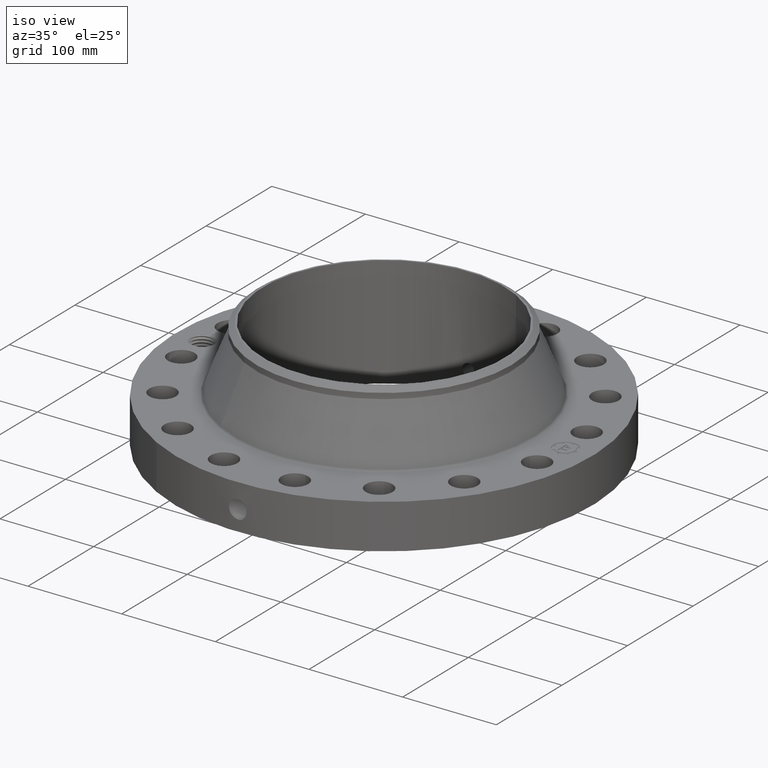
[diagram: clean part render]
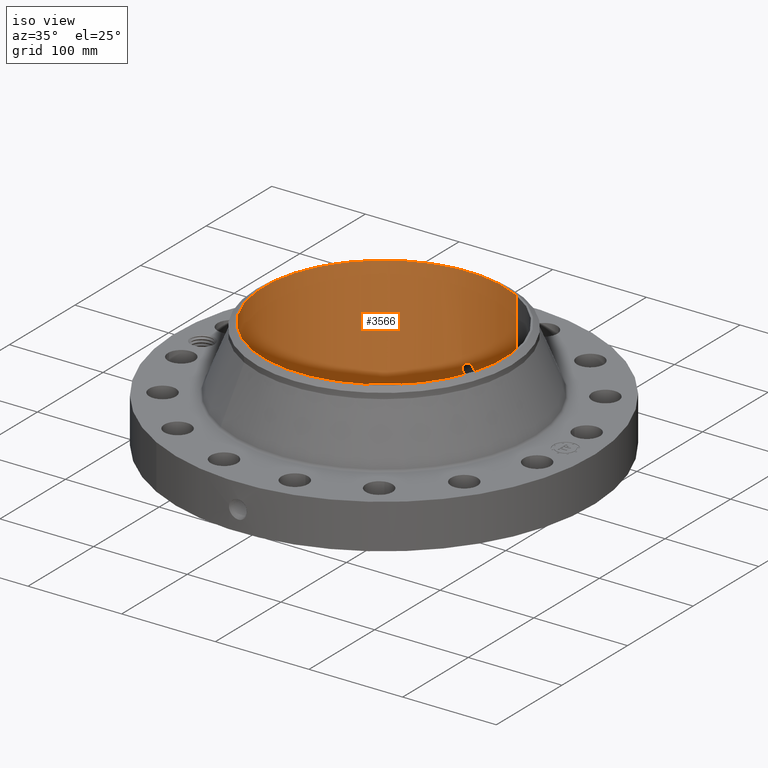
[diagram: same view with one face highlighted and labeled with its STEP entity id]
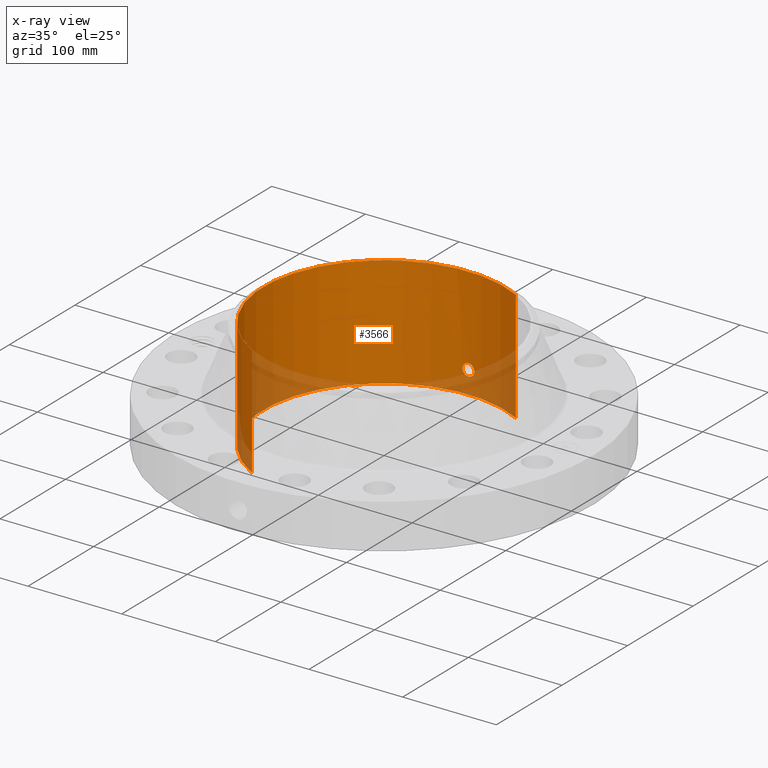
[diagram: x-ray of the same camera — body ghosted, the highlighted face saturated]
A machine part, iso view. The second image highlights one B-rep face of the part: STEP entity #3566.
The next image is the same camera in x-ray: the body ghosted, the highlighted face saturated — about 16% of this face is hidden behind the body in this view.
In plain terms, the highlighted cylindrical surface (partial cylindrical patch) has radius 128.727 mm, axis along (0, 0, -1).
Its self-contained STEP definition (entity closure, byte-faithful):
#2737=AXIS2_PLACEMENT_3D('Circle Axis2P3D',#2735,#2736,$) ;
#3443=AXIS2_PLACEMENT_3D('Cylinder Axis2P3D',#3440,#3441,#3442) ;
#3515=AXIS2_PLACEMENT_3D('Circle Axis2P3D',#3513,#3514,$) ;
#2730=CARTESIAN_POINT('Vertex',(2.42972862966,4.44758842368,-1.17491318512E-014)) ;
#2732=CARTESIAN_POINT('Vertex',(-2.42972862966,-4.44758842368,-1.17491318512E-014)) ;
#2735=CARTESIAN_POINT('Axis2P3D Location',(0.,0.,0.)) ;
#3440=CARTESIAN_POINT('Axis2P3D Location',(0.,0.,2.34000000001)) ;
#3449=CARTESIAN_POINT('Vertex',(2.42972862966,4.44758842368,4.68000000002)) ;
#3451=CARTESIAN_POINT('Vertex',(-2.42972862966,-4.44758842368,4.68000000002)) ;
#3454=CARTESIAN_POINT('Line Origine',(2.42972862966,4.44758842368,2.34000000001)) ;
#3459=CARTESIAN_POINT('Line Origine',(-2.42972862966,-4.44758842368,2.34000000001)) ;
#3513=CARTESIAN_POINT('Axis2P3D Location',(0.,0.,4.68000000002)) ;
#3525=CARTESIAN_POINT('Control Point',(0.219395640473,5.06324891282,1.05985638466)) ;
#3526=CARTESIAN_POINT('Control Point',(0.206921719493,5.06378942029,1.08268974385)) ;
#3527=CARTESIAN_POINT('Control Point',(0.191478259989,5.06442011497,1.10389868038)) ;
#3528=CARTESIAN_POINT('Control Point',(0.173345217368,5.0650922661,1.12297023902)) ;
#3529=CARTESIAN_POINT('Control Point',(0.112136795116,5.06703633096,1.17244893639)) ;
#3530=CARTESIAN_POINT('Control Point',(0.034982280057,5.06829938306,1.19597344248)) ;
#3531=CARTESIAN_POINT('Control Point',(-0.0195598942538,5.06839375583,1.19761228125)) ;
#3532=CARTESIAN_POINT('Control Point',(-0.124145130355,5.06700352883,1.17247015524)) ;
#3533=CARTESIAN_POINT('Control Point',(-0.20318994661,5.06412590489,1.09955920586)) ;
#3534=CARTESIAN_POINT('Control Point',(-0.232166968369,5.06270914309,1.05334455229)) ;
#3535=CARTESIAN_POINT('Control Point',(-0.255833238278,5.06154277102,0.975188263643)) ;
#3536=CARTESIAN_POINT('Control Point',(-0.248295655354,5.0619139393,0.895799642857)) ;
#3537=CARTESIAN_POINT('Control Point',(-0.242061572612,5.06222543809,0.869216522203)) ;
#3538=CARTESIAN_POINT('Control Point',(-0.232323388935,5.06268874054,0.84380770018)) ;
#3539=CARTESIAN_POINT('Control Point',(-0.219395640473,5.06324891282,0.820143615352)) ;
#3540=CARTESIAN_POINT('Vertex',(0.219395640473,5.06324891282,1.05985638466)) ;
#3542=CARTESIAN_POINT('Vertex',(-0.219395640473,5.06324891282,0.820143615352)) ;
#3546=CARTESIAN_POINT('Control Point',(-0.219395640473,5.06324891282,0.820143615352)) ;
#3547=CARTESIAN_POINT('Control Point',(-0.206921719501,5.06378942029,0.79731025617)) ;
#3548=CARTESIAN_POINT('Control Point',(-0.191478260008,5.06442011497,0.776101319653)) ;
#3549=CARTESIAN_POINT('Control Point',(-0.173345217346,5.0650922661,0.757029760968)) ;
#3550=CARTESIAN_POINT('Control Point',(-0.112136795112,5.06703633096,0.707551063618)) ;
#3551=CARTESIAN_POINT('Control Point',(-0.0349822800821,5.06829938306,0.684026557531)) ;
#3552=CARTESIAN_POINT('Control Point',(0.0195598942722,5.06839375583,0.682387718766)) ;
#3553=CARTESIAN_POINT('Control Point',(0.124145130412,5.06700352883,0.70752984479)) ;
#3554=CARTESIAN_POINT('Control Point',(0.203189946687,5.06412590488,0.780440794214)) ;
#3555=CARTESIAN_POINT('Control Point',(0.232166968336,5.06270914309,0.826655447611)) ;
#3556=CARTESIAN_POINT('Control Point',(0.255833238296,5.06154277102,0.904811736352)) ;
#3557=CARTESIAN_POINT('Control Point',(0.248295655346,5.0619139393,0.984200357236)) ;
#3558=CARTESIAN_POINT('Control Point',(0.242061572644,5.06222543809,1.01078347772)) ;
#3559=CARTESIAN_POINT('Control Point',(0.232323388956,5.06268874054,1.03619229979)) ;
#3560=CARTESIAN_POINT('Control Point',(0.219395640473,5.06324891282,1.05985638466)) ;
#2736=DIRECTION('Axis2P3D Direction',(0.,0.,-0.0393700787402)) ;
#3441=DIRECTION('Axis2P3D Direction',(0.,0.,-0.0393700787402)) ;
#3442=DIRECTION('Axis2P3D XDirection',(-0.0188750212049,-0.0345504945626,0.)) ;
#3455=DIRECTION('Vector Direction',(0.,0.,-0.0393700787402)) ;
#3460=DIRECTION('Vector Direction',(0.,0.,-0.0393700787402)) ;
#3514=DIRECTION('Axis2P3D Direction',(0.,0.,-0.0393700787402)) ;
#3456=VECTOR('Line Direction',#3455,0.0393700787402) ;
#3461=VECTOR('Line Direction',#3460,0.0393700787402) ;
#3519=ORIENTED_EDGE('',*,*,#3517,.F.) ;
#3520=ORIENTED_EDGE('',*,*,#3463,.T.) ;
#3521=ORIENTED_EDGE('',*,*,#2739,.T.) ;
#3522=ORIENTED_EDGE('',*,*,#3458,.F.) ;
#3563=ORIENTED_EDGE('',*,*,#3544,.F.) ;
#3564=ORIENTED_EDGE('',*,*,#3561,.F.) ;
#3565=FACE_BOUND('',#3562,.T.) ;
#3566=ADVANCED_FACE('PartBody',(#3523,#3565),#3444,.F.) ;
#3524=B_SPLINE_CURVE_WITH_KNOTS('',5,(#3525,#3526,#3527,#3528,#3529,#3530,#3531,#3532,#3533,#3534,#3535,#3536,#3537,#3538,#3539),.UNSPECIFIED.,.F.,.U.,(6,3,3,3,6),(0.,4.67405947286,14.0221239103,23.3721121463,28.2162237335),.UNSPECIFIED.) ;
#3545=B_SPLINE_CURVE_WITH_KNOTS('',5,(#3546,#3547,#3548,#3549,#3550,#3551,#3552,#3553,#3554,#3555,#3556,#3557,#3558,#3559,#3560),.UNSPECIFIED.,.F.,.U.,(6,3,3,3,6),(0.,4.67405947005,14.0221239056,23.3721121509,28.216223746),.UNSPECIFIED.) ;
#2738=CIRCLE('generated circle',#2737,5.06800000002) ;
#3516=CIRCLE('generated circle',#3515,5.06800000002) ;
#3444=CYLINDRICAL_SURFACE('generated cylinder',#3443,5.06800000002) ;
#2739=EDGE_CURVE('',#2733,#2731,#2738,.T.) ;
#3458=EDGE_CURVE('',#3450,#2731,#3457,.T.) ;
#3463=EDGE_CURVE('',#3452,#2733,#3462,.T.) ;
#3517=EDGE_CURVE('',#3452,#3450,#3516,.T.) ;
#3544=EDGE_CURVE('',#3541,#3543,#3524,.T.) ;
#3561=EDGE_CURVE('',#3543,#3541,#3545,.T.) ;
#3518=EDGE_LOOP('',(#3519,#3520,#3521,#3522)) ;
#3562=EDGE_LOOP('',(#3563,#3564)) ;
#3523=FACE_OUTER_BOUND('',#3518,.T.) ;
#3457=LINE('Line',#3454,#3456) ;
#3462=LINE('Line',#3459,#3461) ;
#2731=VERTEX_POINT('',#2730) ;
#2733=VERTEX_POINT('',#2732) ;
#3450=VERTEX_POINT('',#3449) ;
#3452=VERTEX_POINT('',#3451) ;
#3541=VERTEX_POINT('',#3540) ;
#3543=VERTEX_POINT('',#3542) ;